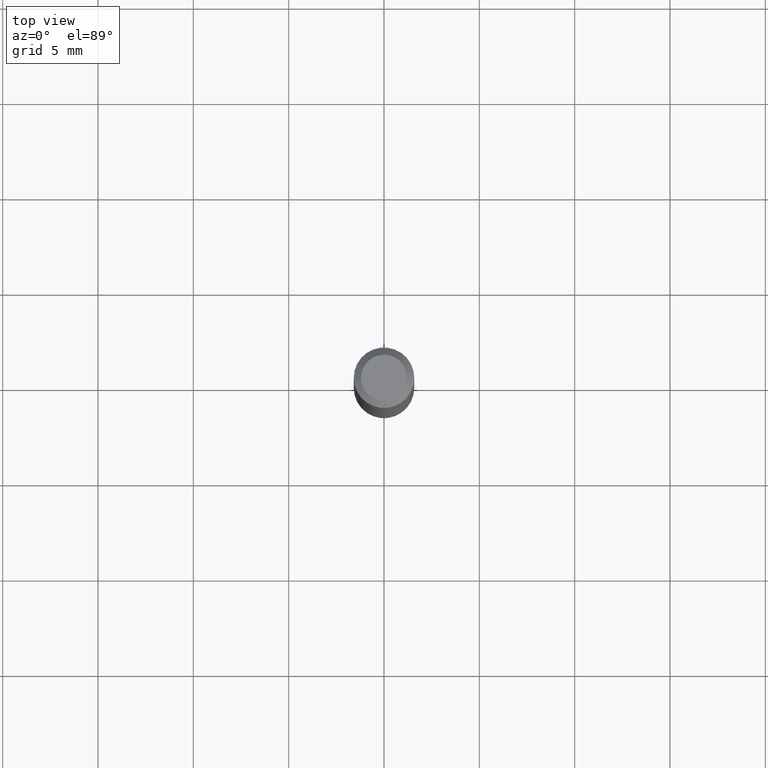
[diagram: clean part render]
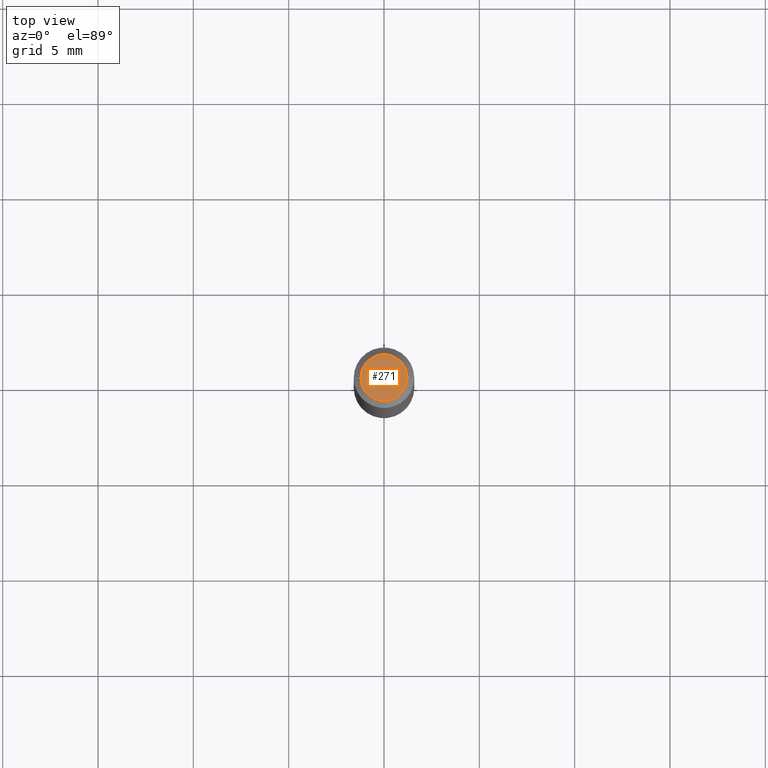
[diagram: same view with one face highlighted and labeled with its STEP entity id]
A machine part, top view. The second image highlights one B-rep face of the part: STEP entity #271.
In plain terms, the highlighted planar face has unit normal (0, -0, -1).
Its self-contained STEP definition (entity closure, byte-faithful):
#32 = DIRECTION ( 'NONE',  ( -1.000000000000000000, 6.982962677686265922E-15, -4.876176775795935793E-29 ) ) ;
#37 = AXIS2_PLACEMENT_3D ( 'NONE', #208, #144, #153 ) ;
#49 = VERTEX_POINT ( 'NONE', #383 ) ;
#84 = VERTEX_POINT ( 'NONE', #286 ) ;
#89 = AXIS2_PLACEMENT_3D ( 'NONE', #306, #160, #311 ) ;
#101 = FACE_OUTER_BOUND ( 'NONE', #112, .T. ) ;
#112 = EDGE_LOOP ( 'NONE', ( #303, #147 ) ) ;
#144 = DIRECTION ( 'NONE',  ( -2.445468806185136597E-29, 3.491481338843145583E-15, 1.000000000000000000 ) ) ;
#147 = ORIENTED_EDGE ( 'NONE', *, *, #329, .T. ) ;
#153 = DIRECTION ( 'NONE',  ( 1.000000000000000000, -6.982962677686267499E-15, 4.852736867747366768E-29 ) ) ;
#160 = DIRECTION ( 'NONE',  ( -2.445468806185136597E-29, 3.491481338843145583E-15, 1.000000000000000000 ) ) ;
#165 = AXIS2_PLACEMENT_3D ( 'NONE', #369, #261, #32 ) ;
#208 = CARTESIAN_POINT ( 'NONE',  ( 1.278896122067429216E-44, -1.825924719719875646E-30, -5.229656247639779395E-16 ) ) ;
#253 = PLANE ( 'NONE',  #165 ) ;
#259 = CIRCLE ( 'NONE', #37, 0.04749999999999999362 ) ;
#261 = DIRECTION ( 'NONE',  ( 2.438088387897960049E-29, -3.491481338843145188E-15, -1.000000000000000000 ) ) ;
#271 = ADVANCED_FACE ( 'NONE', ( #101 ), #253, .F. ) ;
#286 = CARTESIAN_POINT ( 'NONE',  ( 0.04749999999999999362, -4.035134999187587991E-16, -5.229656247639753758E-16 ) ) ;
#303 = ORIENTED_EDGE ( 'NONE', *, *, #333, .T. ) ;
#306 = CARTESIAN_POINT ( 'NONE',  ( 1.278896122067429216E-44, -1.825924719719875646E-30, -5.229656247639779395E-16 ) ) ;
#311 = DIRECTION ( 'NONE',  ( 1.000000000000000000, -6.982962677686267499E-15, 4.852736867747366768E-29 ) ) ;
#329 = EDGE_CURVE ( 'NONE', #84, #49, #402, .T. ) ;
#333 = EDGE_CURVE ( 'NONE', #49, #84, #259, .T. ) ;
#369 = CARTESIAN_POINT ( 'NONE',  ( 3.316907271900976096E-16, 0.04749999999999999362, -4.273281759770383169E-16 ) ) ;
#383 = CARTESIAN_POINT ( 'NONE',  ( -0.04749999999999999362, 3.578768372314202124E-16, -5.229656247639803061E-16 ) ) ;
#402 = CIRCLE ( 'NONE', #89, 0.04749999999999999362 ) ;